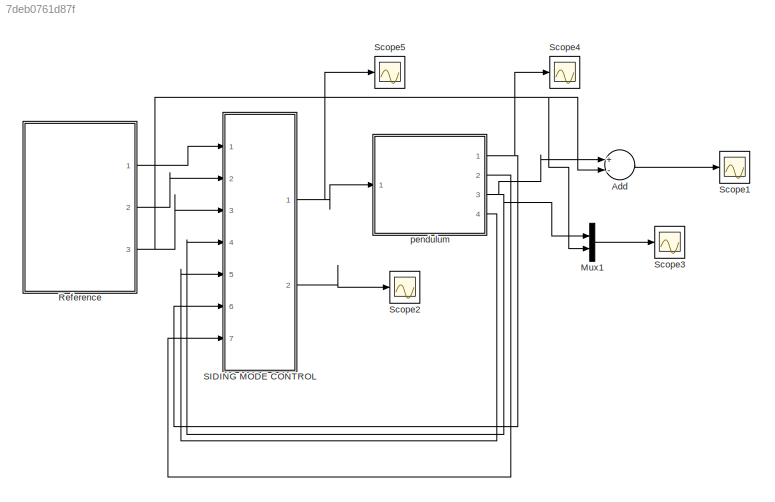
MODEL slx_7deb0761d87f
KIND model
CONFIG AbsTol = auto
CONFIG EnableMultiTasking = off
CONFIG FixedStep = 0.01
CONFIG MaxStep = auto
CONFIG MinStep = auto
CONFIG RelTol = 1e-3
CONFIG SampleTimeConstraint = Unconstrained
CONFIG Solver = FixedStepAuto
CONFIG SolverName = FixedStepAuto
CONFIG StartTime = 0.0
CONFIG StopTime = 40
BLOCK [Sum] Add
  InputSameDT = off
  Inputs = +-
  OutDataTypeStr = Inherit: Inherit via internal rule
  Ports = [2, 1]
  SaturateOnIntegerOverflow = off
BLOCK [Mux] Mux1
  DisplayOption = bar
  Inputs = 2
  Ports = [2, 1]
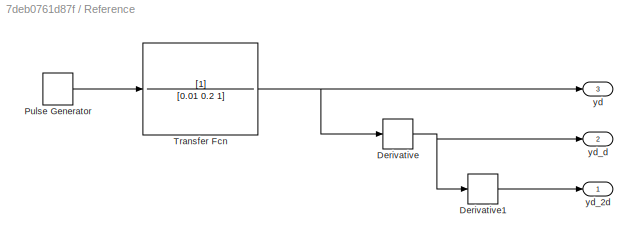
BLOCK [SubSystem] Reference
  Ports = [0, 3]
  RequestExecContextInheritance = off
  Variant = off
BLOCK [Derivative] Reference/Derivative
BLOCK [Derivative] Reference/Derivative1
BLOCK [DiscretePulseGenerator] Reference/Pulse Generator
  Amplitude = pi/3
  Period = 20
  Ports = [0, 1]
  PulseType = Time based
  PulseWidth = 50
BLOCK [TransferFcn] Reference/Transfer Fcn
  Denominator = [0.01 0.2 1]
BLOCK [Outport] Reference/yd
  IconDisplay = Port number
  Port = 3
  VectorParamsAs1DForOutWhenUnconnected = on
BLOCK [Outport] Reference/yd_2d
  IconDisplay = Port number
  VectorParamsAs1DForOutWhenUnconnected = on
BLOCK [Outport] Reference/yd_d
  IconDisplay = Port number
  Port = 2
  VectorParamsAs1DForOutWhenUnconnected = on
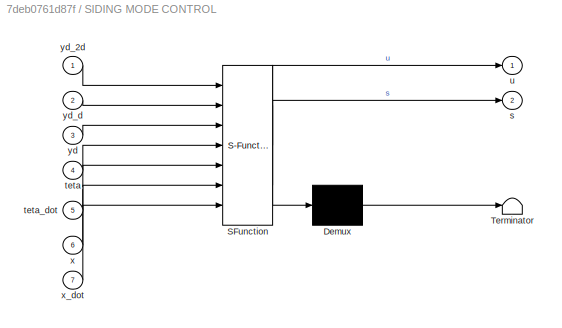
BLOCK [SubSystem] SIDING MODE CONTROL 
  ErrorFcn = Stateflow.Translate.translate
  PermitHierarchicalResolution = ExplicitOnly
  Ports = [7, 2]
  RequestExecContextInheritance = off
  SFBlockType = MATLAB Function
  TreatAsAtomicUnit = on
  Variant = off
BLOCK [Demux] SIDING MODE CONTROL / Demux 
  Outputs = 1
  Ports = [1, 1]
BLOCK [S-Function] SIDING MODE CONTROL / SFunction 
  EnableBusSupport = on
  FunctionName = sf_sfun
  PortCounts = [7 3]
  Ports = [7, 3]
  SFcnIsStateOwnerBlock = off
  SFunctionDeploymentMode = off
  Tag = Stateflow S-Function SCM_PENDULUM_OKE 2
BLOCK [Terminator] SIDING MODE CONTROL / Terminator 
BLOCK [Outport] SIDING MODE CONTROL /s
  IconDisplay = Port number
  Port = 2
  VectorParamsAs1DForOutWhenUnconnected = on
BLOCK [Inport] SIDING MODE CONTROL /teta
  IconDisplay = Port number
  Port = 4
BLOCK [Inport] SIDING MODE CONTROL /teta_dot
  IconDisplay = Port number
  Port = 5
BLOCK [Outport] SIDING MODE CONTROL /u
  IconDisplay = Port number
  VectorParamsAs1DForOutWhenUnconnected = on
BLOCK [Inport] SIDING MODE CONTROL /x
  IconDisplay = Port number
  Port = 6
BLOCK [Inport] SIDING MODE CONTROL /x_dot
  IconDisplay = Port number
  Port = 7
BLOCK [Inport] SIDING MODE CONTROL /yd
  IconDisplay = Port number
  Port = 3
BLOCK [Inport] SIDING MODE CONTROL /yd_2d
  IconDisplay = Port number
BLOCK [Inport] SIDING MODE CONTROL /yd_d
  IconDisplay = Port number
  Port = 2
BLOCK [Scope] Scope1
  NumInputPorts = 1
  Ports = [1]
  ScopeSpecificationString = Simulink.scopes.TimeScopeBlockCfg('CurrentConfiguration', extmgr.ConfigurationSet(extmgr.Configuration('Core','General UI',true),extmgr.Configuration('Core','Source UI',true),extmgr.Configuration('Sources','WiredSimulink',true,'DataLoggingVariableName','ScopeData2'),extmgr.Configuration('Visuals','Time Domain',true,'SerializedDisplays',{struct('MinYLimReal','-0.01994','MaxYLimReal','0.05777','YLab...<+1387ch>
BLOCK [Scope] Scope2
  NumInputPorts = 1
  Ports = [1]
  ScopeSpecificationString = Simulink.scopes.TimeScopeBlockCfg('CurrentConfiguration', extmgr.ConfigurationSet(extmgr.Configuration('Core','General UI',true),extmgr.Configuration('Core','Source UI',true),extmgr.Configuration('Sources','WiredSimulink',true),extmgr.Configuration('Visuals','Time Domain',true,'SerializedDisplays',{struct('MinYLimReal','-0.41917','MaxYLimReal','0.60213','YLabelReal','','MinYLimMag','0.00000','MaxY...<+1413ch>
BLOCK [Scope] Scope3
  NumInputPorts = 1
  Ports = [1]
  ScopeSpecificationString = Simulink.scopes.TimeScopeBlockCfg('CurrentConfiguration', extmgr.ConfigurationSet(extmgr.Configuration('Core','General UI',true),extmgr.Configuration('Core','Source UI',true),extmgr.Configuration('Sources','WiredSimulink',true,'DataLoggingVariableName','ScopeData1'),extmgr.Configuration('Visuals','Time Domain',true,'SerializedDisplays',{struct('MinYLimReal','-0.13095','MaxYLimReal','1.17815','YLab...<+1453ch>
BLOCK [Scope] Scope4
  NumInputPorts = 1
  Ports = [1]
  ScopeSpecificationString = Simulink.scopes.TimeScopeBlockCfg('CurrentConfiguration', extmgr.ConfigurationSet(extmgr.Configuration('Core','General UI',true),extmgr.Configuration('Core','Source UI',true),extmgr.Configuration('Sources','WiredSimulink',true,'DataLoggingVariableName','ScopeData3'),extmgr.Configuration('Visuals','Time Domain',true,'SerializedDisplays',{struct('MinYLimReal','-3393.96856','MaxYLimReal','1684.19678'...<+1416ch>
BLOCK [Scope] Scope5
  NumInputPorts = 1
  Ports = [1]
  ScopeSpecificationString = Simulink.scopes.TimeScopeBlockCfg('CurrentConfiguration', extmgr.ConfigurationSet(extmgr.Configuration('Core','General UI',true),extmgr.Configuration('Core','Source UI',true),extmgr.Configuration('Sources','WiredSimulink',true,'DataLoggingVariableName','ScopeData5'),extmgr.Configuration('Visuals','Time Domain',true,'SerializedDisplays',{struct('MinYLimReal','-1965.51847','MaxYLimReal','1732.88976'...<+1429ch>
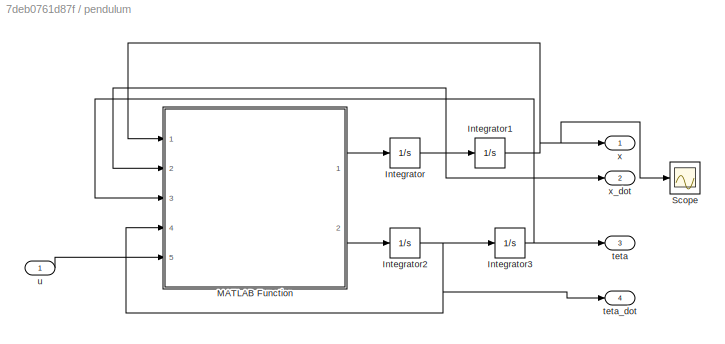
BLOCK [SubSystem] pendulum
  Ports = [1, 4]
  RequestExecContextInheritance = off
  Variant = off
BLOCK [Integrator] pendulum/Integrator
  Ports = [1, 1]
BLOCK [Integrator] pendulum/Integrator1
  InitialCondition = 0.05
  Ports = [1, 1]
BLOCK [Integrator] pendulum/Integrator2
  Ports = [1, 1]
BLOCK [Integrator] pendulum/Integrator3
  InitialCondition = 0.05
  Ports = [1, 1]
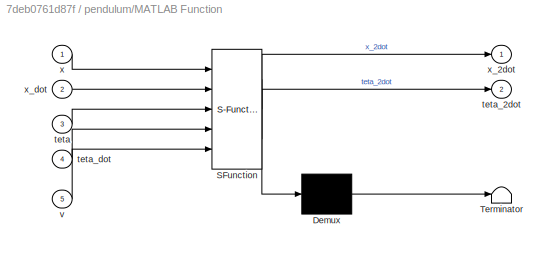
BLOCK [SubSystem] pendulum/MATLAB Function
  ErrorFcn = Stateflow.Translate.translate
  PermitHierarchicalResolution = ExplicitOnly
  Ports = [5, 2]
  RequestExecContextInheritance = off
  SFBlockType = MATLAB Function
  TreatAsAtomicUnit = on
  Variant = off
BLOCK [Demux] pendulum/MATLAB Function/ Demux 
  Outputs = 1
  Ports = [1, 1]
BLOCK [S-Function] pendulum/MATLAB Function/ SFunction 
  EnableBusSupport = on
  FunctionName = sf_sfun
  PortCounts = [5 3]
  Ports = [5, 3]
  SFcnIsStateOwnerBlock = off
  SFunctionDeploymentMode = off
  Tag = Stateflow S-Function SCM_PENDULUM_OKE 1
BLOCK [Terminator] pendulum/MATLAB Function/ Terminator 
BLOCK [Inport] pendulum/MATLAB Function/teta
  IconDisplay = Port number
  Port = 3
BLOCK [Outport] pendulum/MATLAB Function/teta_2dot
  IconDisplay = Port number
  Port = 2
BLOCK [Inport] pendulum/MATLAB Function/teta_dot
  IconDisplay = Port number
  Port = 4
BLOCK [Inport] pendulum/MATLAB Function/v
  IconDisplay = Port number
  Port = 5
BLOCK [Inport] pendulum/MATLAB Function/x
  IconDisplay = Port number
BLOCK [Outport] pendulum/MATLAB Function/x_2dot
  IconDisplay = Port number
BLOCK [Inport] pendulum/MATLAB Function/x_dot
  IconDisplay = Port number
  Port = 2
BLOCK [Scope] pendulum/Scope
  NumInputPorts = 1
  Ports = [1]
  ScopeSpecificationString = Simulink.scopes.TimeScopeBlockCfg('CurrentConfiguration', extmgr.ConfigurationSet(extmgr.Configuration('Core','General UI',true),extmgr.Configuration('Core','Source UI',true),extmgr.Configuration('Sources','WiredSimulink',true,'DataLoggingVariableName','ScopeData4'),extmgr.Configuration('Visuals','Time Domain',true,'SerializedDisplays',{struct('MinYLimReal','-3393.96856','MaxYLimReal','1684.19678'...<+1419ch>
BLOCK [Outport] pendulum/teta
  IconDisplay = Port number
  Port = 3
BLOCK [Outport] pendulum/teta_dot
  IconDisplay = Port number
  Port = 4
BLOCK [Inport] pendulum/u
  IconDisplay = Port number
BLOCK [Outport] pendulum/x
  IconDisplay = Port number
BLOCK [Outport] pendulum/x_dot
  IconDisplay = Port number
  Port = 2
LINE Add:1 -> Scope1:1
LINE Mux1:1 -> Scope3:1
LINE Reference/Derivative1:1 -> Reference/yd_2d:1
NET Reference/Derivative:1 -> Reference/Derivative1:1, Reference/yd_d:1
LINE Reference/Pulse Generator:1 -> Reference/Transfer Fcn:1
NET Reference/Transfer Fcn:1 -> Reference/Derivative:1, Reference/yd:1
LINE Reference:1 -> SIDING MODE CONTROL :1
LINE Reference:2 -> SIDING MODE CONTROL :2
NET Reference:3 -> Add:2, Mux1:2, SIDING MODE CONTROL :3
NET SIDING MODE CONTROL :1 -> Scope5:1, pendulum:1
LINE SIDING MODE CONTROL :2 -> Scope2:1
NET pendulum/Integrator1:1 -> pendulum/MATLAB Function:1, pendulum/Scope:1, pendulum/x:1
NET pendulum/Integrator2:1 -> pendulum/Integrator3:1, pendulum/MATLAB Function:4, pendulum/teta_dot:1
NET pendulum/Integrator3:1 -> pendulum/MATLAB Function:3, pendulum/teta:1
NET pendulum/Integrator:1 -> pendulum/Integrator1:1, pendulum/MATLAB Function:2, pendulum/x_dot:1
LINE pendulum/MATLAB Function:1 -> pendulum/Integrator:1
LINE pendulum/MATLAB Function:2 -> pendulum/Integrator2:1
LINE pendulum/u:1 -> pendulum/MATLAB Function:5
NET pendulum:1 -> SIDING MODE CONTROL :6, Scope4:1
LINE pendulum:2 -> SIDING MODE CONTROL :7
NET pendulum:3 -> Add:1, Mux1:1, SIDING MODE CONTROL :4
LINE pendulum:4 -> SIDING MODE CONTROL :5
note: NET lines group one-source signal fan-out (src -> all destinations, sorted); 1:1 wires keep LINE
CHART pendulum/MATLAB Function states=1 transitions=1
  STATE_LABEL 'eML_blk_kernel()'
  STATE_LABEL "SCRIPT:\nfunction [x_2dot,teta_2dot] = fcn(x,x_dot,teta,teta_dot,v)\nglobal v1 v2\ng=9.81; %Gravity(m/s^2)\nr=0.051; %Radius of wheel(m)\nMw=0.03; %Mass of wheel(kg)\nMp=1.13; %Mass of body(kg)\nIw=0.000039; %Inertia of the wheel(kg*m^2)\nIp=0.0041; %Inertia of the body(kg*m^2)\nL=0.07; %Length to the body's center of mass(m)\n\n%Motor's variables\nKm=0.006123; %Motor torque constant(Nm/A)\nKe=0.006087; %Back ...<+473ch>"
CHART SIDING MODE CONTROL
  states=1 transitions=1
  STATE_LABEL 'eML_blk_kernel()'
  STATE_LABEL "SCRIPT:\nfunction [u,s]= SMC(yd_2d,yd_d,yd,teta,teta_dot,x,x_dot)\n\ng=9.81; %Gravity(m/s^2)\nr=0.051; %Radius of wheel(m)\nMw=0.03; %Mass of wheel(kg)\nMp=1.13; %Mass of body(kg)\nIw=0.000039; %Inertia of the wheel(kg*m^2)\nIp=0.0041; %Inertia of the body(kg*m^2)\nL=0.07; %Length to the body's center of mass(m)\n\n%Motor's variables\nKm=0.006123; %Motor torque constant(Nm/A)\nKe=0.006087; %Back EMF constant(V...<+779ch>"
